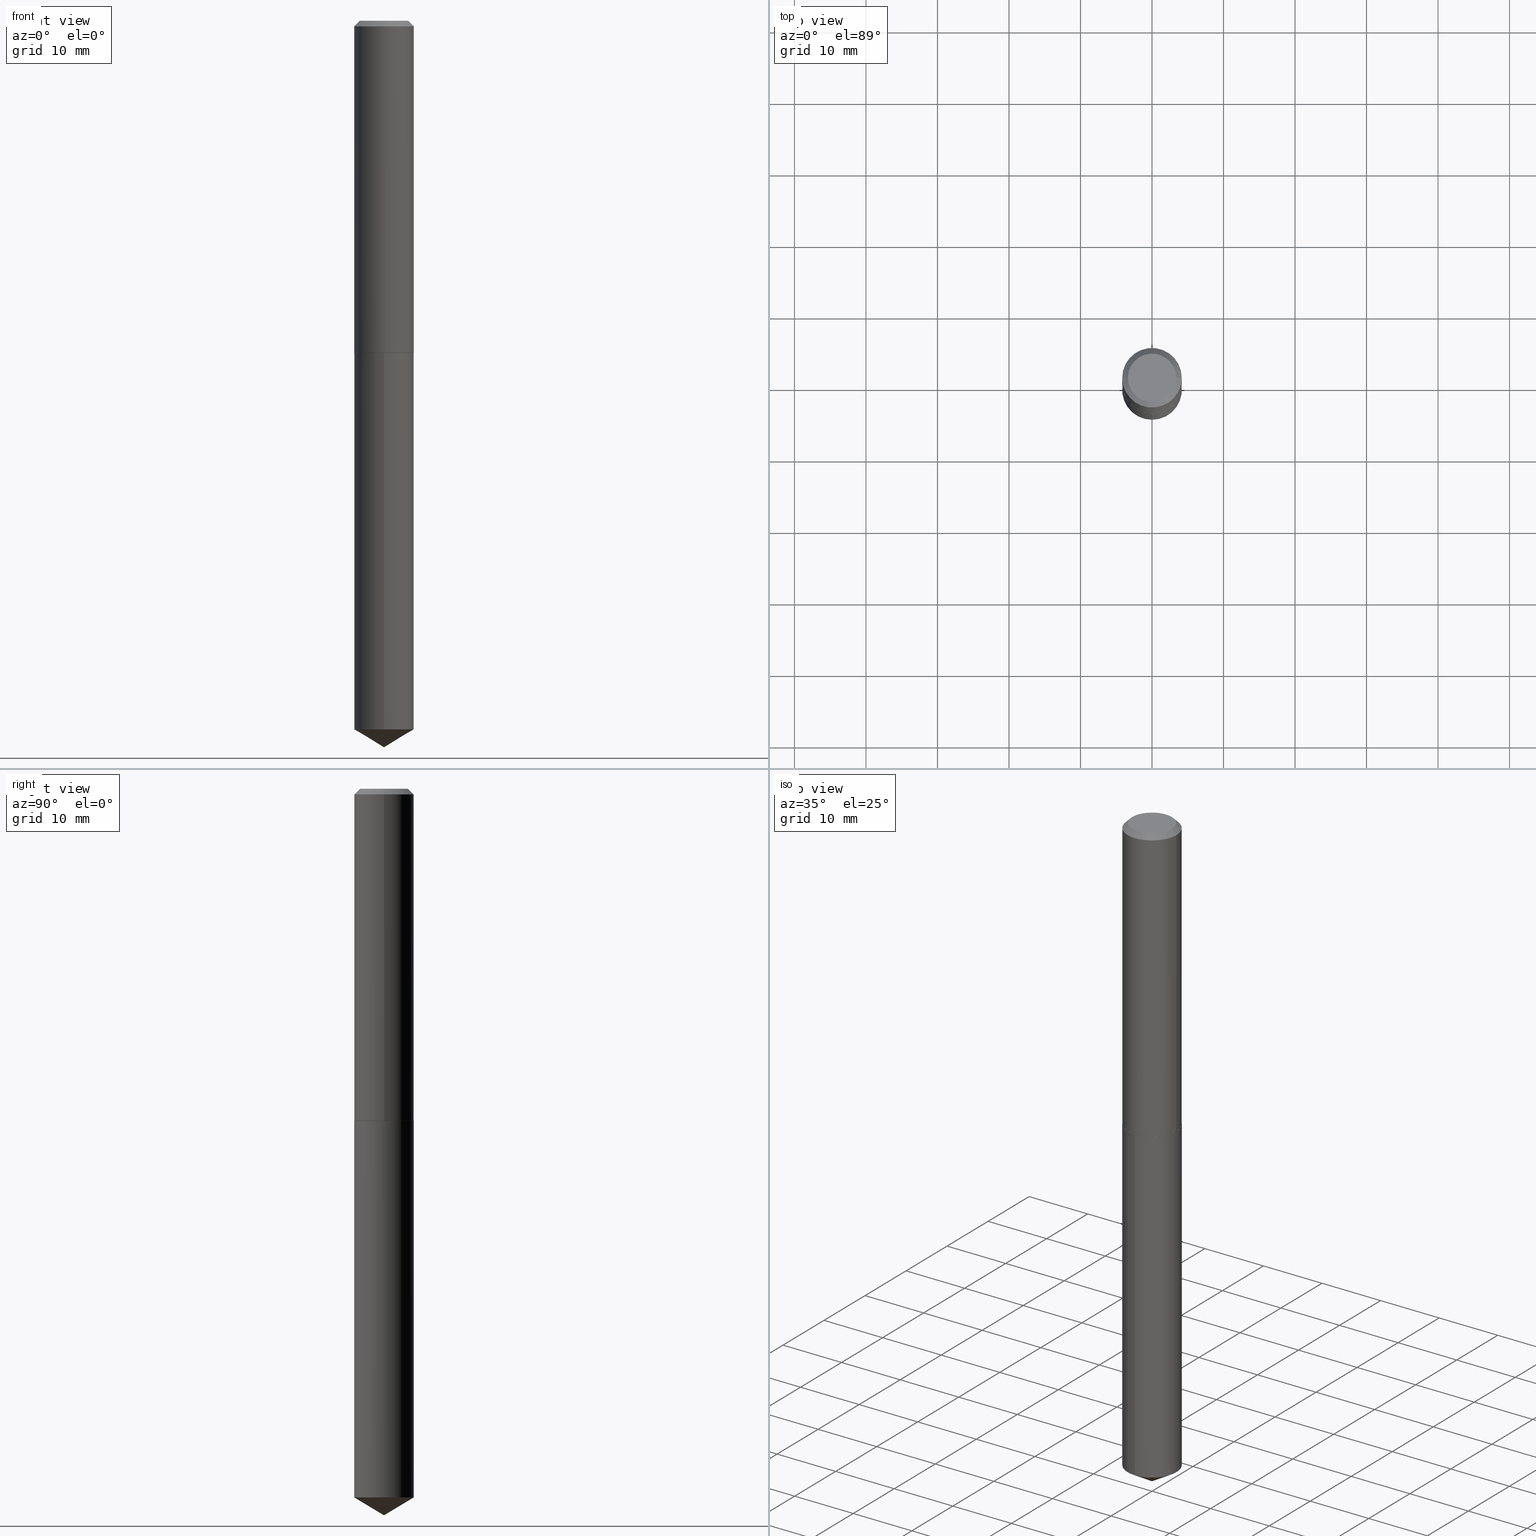
[diagram: canonical four-view strip — front | top / right | iso, engineering-drawing reading convention]
A machine part, canonical four-view strip (front | top / right | iso — engineering-drawing reading convention). The complete STEP part file that produces these views, byte-faithful:
ISO-10303-21;
HEADER;
FILE_DESCRIPTION (( 'STEP AP203' ),
    '1' );
FILE_NAME ('51121.STEP',
    '2024-04-22T18:31:22',
    ( '' ),
    ( '' ),
    'SwSTEP 2.0',
    'SolidWorks 2023',
    '' );
FILE_SCHEMA (( 'CONFIG_CONTROL_DESIGN' ));
ENDSEC;

DATA;
#1 = DIRECTION ( 'NONE',  ( -5.985567269335959423E-15, -0.8571673007021127777, 0.5150380749100531563 ) ) ;
#2 = LINE ( 'NONE', #271, #278 ) ;
#3 = LINE ( 'NONE', #88, #195 ) ;
#4 = CC_DESIGN_APPROVAL ( #79, ( #347 ) ) ;
#5 = DIRECTION ( 'NONE',  ( 1.000000000000000000, -6.982962677686264344E-15, 0.000000000000000000 ) ) ;
#6 = DIRECTION ( 'NONE',  ( -1.000000000000000000, 6.982962677686265922E-15, -4.876176775795935793E-29 ) ) ;
#7 = COORDINATED_UNIVERSAL_TIME_OFFSET ( 5, 0, .BEHIND. ) ;
#8 = ORIENTED_EDGE ( 'NONE', *, *, #290, .F. ) ;
#9 = EDGE_CURVE ( 'NONE', #256, #250, #207, .T. ) ;
#10 = MANIFOLD_SOLID_BREP ( 'Body-Move/Copy2[2]', #223 ) ;
#11 = DIRECTION ( 'NONE',  ( 1.000000000000000000, 0.000000000000000000, 0.000000000000000000 ) ) ;
#12 = AXIS2_PLACEMENT_3D ( 'NONE', #153, #61, #92 ) ;
#13 = ORIENTED_EDGE ( 'NONE', *, *, #111, .F. ) ;
#14 = CARTESIAN_POINT ( 'NONE',  ( 9.540838568338950055E-29, -1.362174284697678349E-14, -3.901428815448529708 ) ) ;
#15 = CALENDAR_DATE ( 2024, 22, 4 ) ;
#16 = ORIENTED_EDGE ( 'NONE', *, *, #389, .F. ) ;
#17 =( CONVERSION_BASED_UNIT ( 'INCH', #160 ) LENGTH_UNIT ( ) NAMED_UNIT ( #24 ) );
#18 = ORIENTED_EDGE ( 'NONE', *, *, #304, .F. ) ;
#19 = DIRECTION ( 'NONE',  ( -2.445476571768493601E-29, 3.491470218085789051E-15, 1.000000000000000000 ) ) ;
#20 = CARTESIAN_POINT ( 'NONE',  ( 4.470561524587048986E-29, -6.382777035539155361E-15, -1.828100000000000058 ) ) ;
#21 = FACE_OUTER_BOUND ( 'NONE', #193, .T. ) ;
#22 = VECTOR ( 'NONE', #335, 39.37007874015748143 ) ;
#23 = LINE ( 'NONE', #382, #377 ) ;
#24 = DIMENSIONAL_EXPONENTS ( 1.000000000000000000, 0.000000000000000000, 0.000000000000000000, 0.000000000000000000, 0.000000000000000000, 0.000000000000000000, 0.000000000000000000 ) ;
#25 = ADVANCED_FACE ( 'NONE', ( #314 ), #62, .T. ) ;
#26 = FACE_OUTER_BOUND ( 'NONE', #277, .T. ) ;
#27 = DIRECTION ( 'NONE',  ( -1.000000000000000000, 6.982962677686266711E-15, 0.000000000000000000 ) ) ;
#28 = AXIS2_PLACEMENT_3D ( 'NONE', #172, #211, #75 ) ;
#29 = VECTOR ( 'NONE', #269, 39.37007874015748143 ) ;
#30 = DIRECTION ( 'NONE',  ( -0.7071067811863543939, 7.493145998869656807E-15, 0.7071067811867406405 ) ) ;
#31 = ORIENTED_EDGE ( 'NONE', *, *, #386, .T. ) ;
#32 = EDGE_CURVE ( 'NONE', #220, #375, #390, .T. ) ;
#33 = DIRECTION ( 'NONE',  ( -2.445468806185136597E-29, 3.491481338843145583E-15, 1.000000000000000000 ) ) ;
#34 = DIRECTION ( 'NONE',  ( -6.982962677686265922E-15, -1.000000000000000000, 3.468864327941557927E-15 ) ) ;
#35 = AXIS2_PLACEMENT_3D ( 'NONE', #113, #229, #78 ) ;
#36 = CARTESIAN_POINT ( 'NONE',  ( 7.642090019328608793E-31, -1.091087918388491130E-16, -0.03125000000000023592 ) ) ;
#37 = APPROVAL_ROLE ( '' ) ;
#38 = EDGE_CURVE ( 'NONE', #342, #283, #297, .T. ) ;
#39 = PERSON_AND_ORGANIZATION_ROLE ( 'creator' ) ;
#40 = DIRECTION ( 'NONE',  ( -2.445476571768493321E-29, 3.491470218085789051E-15, 1.000000000000000000 ) ) ;
#41 = COORDINATED_UNIVERSAL_TIME_OFFSET ( 5, 0, .BEHIND. ) ;
#42 = CIRCLE ( 'NONE', #28, 0.1327999999999999736 ) ;
#43 = AXIS2_PLACEMENT_3D ( 'NONE', #217, #241, #242 ) ;
#44 = ORIENTED_EDGE ( 'NONE', *, *, #371, .T. ) ;
#45 = DIRECTION ( 'NONE',  ( -6.982962677686265133E-15, -1.000000000000000000, 3.330506545156066257E-15 ) ) ;
#46 = VERTEX_POINT ( 'NONE', #383 ) ;
#47 = CIRCLE ( 'NONE', #215, 0.1635500000000003618 ) ;
#48 = DIRECTION ( 'NONE',  ( -2.445476571768493321E-29, 3.491470218085789051E-15, 1.000000000000000000 ) ) ;
#49 = CARTESIAN_POINT ( 'NONE',  ( 4.470561524587048986E-29, -6.382777035539155361E-15, -1.828100000000000058 ) ) ;
#50 = CARTESIAN_POINT ( 'NONE',  ( -2.335971725809272108E-47, 3.335148527799636409E-33, 9.552245033349346191E-19 ) ) ;
#51 = DIRECTION ( 'NONE',  ( -6.982962677686265133E-15, -1.000000000000000000, 3.330506545156066257E-15 ) ) ;
#52 = LOCAL_TIME ( 14, 31, 21.00000000000000000, #63 ) ;
#53 = APPLICATION_CONTEXT ( 'configuration controlled 3d designs of mechanical parts and assemblies' ) ;
#54 = DIRECTION ( 'NONE',  ( 1.000000000000000000, -6.982962677686268288E-15, 4.876176775795935793E-29 ) ) ;
#55 = DIRECTION ( 'NONE',  ( 2.445468806185136597E-29, -3.491481338843145583E-15, -1.000000000000000000 ) ) ;
#56 = DIRECTION ( 'NONE',  ( 0.7071067811865453523, -7.319954787623248157E-15, -0.7071067811865496822 ) ) ;
#57 = CARTESIAN_POINT ( 'NONE',  ( 7.642090019328608793E-31, -1.091087918388491130E-16, -0.03125000000000023592 ) ) ;
#58 = EDGE_LOOP ( 'NONE', ( #161, #228, #367, #317 ) ) ;
#59 = CARTESIAN_POINT ( 'NONE',  ( 1.165645358014539817E-15, 0.1640499999999864011, -3.901428815448530152 ) ) ;
#60 = EDGE_CURVE ( 'NONE', #118, #72, #141, .T. ) ;
#61 = DIRECTION ( 'NONE',  ( -2.445468806185136597E-29, 3.491481338843145583E-15, 1.000000000000000000 ) ) ;
#62 = CONICAL_SURFACE ( 'NONE', #201, 65.52281426576911372, 1.029744258676658974 ) ;
#63 = COORDINATED_UNIVERSAL_TIME_OFFSET ( 5, 0, .BEHIND. ) ;
#64 = PERSON_AND_ORGANIZATION ( #126, #248 ) ;
#65 = VERTEX_POINT ( 'NONE', #388 ) ;
#66 = PERSON_AND_ORGANIZATION ( #126, #248 ) ;
#67 = CARTESIAN_POINT ( 'NONE',  ( -8.649671309692491660E-28, 1.234935562027526541E-13, 35.37007874015748143 ) ) ;
#68 = COORDINATED_UNIVERSAL_TIME_OFFSET ( 5, 0, .BEHIND. ) ;
#69 = AXIS2_PLACEMENT_3D ( 'NONE', #243, #369, #180 ) ;
#70 = EDGE_LOOP ( 'NONE', ( #247, #73, #275, #130 ) ) ;
#71 = CARTESIAN_POINT ( 'NONE',  ( 0.000000000000000000, 0.000000000000000000, 0.000000000000000000 ) ) ;
#72 = VERTEX_POINT ( 'NONE', #387 ) ;
#73 = ORIENTED_EDGE ( 'NONE', *, *, #107, .T. ) ;
#74 = EDGE_CURVE ( 'NONE', #46, #72, #287, .T. ) ;
#75 = DIRECTION ( 'NONE',  ( 1.000000000000000000, -6.982962677686266711E-15, 4.876210623450875917E-29 ) ) ;
#76 = CIRCLE ( 'NONE', #69, 0.1635500000000003618 ) ;
#77 = DIRECTION ( 'NONE',  ( -6.982962677686265133E-15, -1.000000000000000000, 3.330506545156066257E-15 ) ) ;
#78 = DIRECTION ( 'NONE',  ( 1.000000000000000000, -6.982962677686266711E-15, 0.000000000000000000 ) ) ;
#79 = APPROVAL ( #280, 'UNSPECIFIED' ) ;
#80 = CARTESIAN_POINT ( 'NONE',  ( 0.000000000000000000, 0.000000000000000000, 0.000000000000000000 ) ) ;
#81 = AXIS2_PLACEMENT_3D ( 'NONE', #326, #289, #51 ) ;
#82 = FACE_OUTER_BOUND ( 'NONE', #370, .T. ) ;
#83 = CARTESIAN_POINT ( 'NONE',  ( 4.470561524587048986E-29, -6.382777035539155361E-15, -1.828100000000000058 ) ) ;
#84 = ORIENTED_EDGE ( 'NONE', *, *, #284, .F. ) ;
#85 = APPROVAL ( #198, 'UNSPECIFIED' ) ;
#86 = FACE_OUTER_BOUND ( 'NONE', #226, .T. ) ;
#87 = EDGE_LOOP ( 'NONE', ( #136, #268, #190, #99 ) ) ;
#88 = CARTESIAN_POINT ( 'NONE',  ( 0.1640500000000001124, -1.145555027274433043E-15, 7.999368000693238548E-30 ) ) ;
#89 = ORIENTED_EDGE ( 'NONE', *, *, #38, .T. ) ;
#90 = DIRECTION ( 'NONE',  ( -2.445468806185136877E-29, 3.491481338843145188E-15, 1.000000000000000000 ) ) ;
#91 = EDGE_CURVE ( 'NONE', #65, #352, #174, .T. ) ;
#92 = DIRECTION ( 'NONE',  ( 1.000000000000000000, -6.982962677686264344E-15, 0.000000000000000000 ) ) ;
#93 = AXIS2_PLACEMENT_3D ( 'NONE', #202, #321, #257 ) ;
#94 = VECTOR ( 'NONE', #56, 39.37007874015748143 ) ;
#95 = CALENDAR_DATE ( 2024, 22, 4 ) ;
#96 = ORIENTED_EDGE ( 'NONE', *, *, #107, .F. ) ;
#97 = ADVANCED_FACE ( 'NONE', ( #82 ), #149, .T. ) ;
#98 =( NAMED_UNIT ( * ) PLANE_ANGLE_UNIT ( ) SI_UNIT ( $, .RADIAN. ) );
#99 = ORIENTED_EDGE ( 'NONE', *, *, #371, .F. ) ;
#100 = SECURITY_CLASSIFICATION_LEVEL ( 'unclassified' ) ;
#101 = VERTEX_POINT ( 'NONE', #292 ) ;
#102 = AXIS2_PLACEMENT_3D ( 'NONE', #14, #252, #45 ) ;
#103 = DATE_AND_TIME ( #376, #52 ) ;
#104 = AXIS2_PLACEMENT_3D ( 'NONE', #303, #245, #6 ) ;
#105 = ORIENTED_EDGE ( 'NONE', *, *, #38, .F. ) ;
#106 = ORIENTED_EDGE ( 'NONE', *, *, #32, .F. ) ;
#107 = EDGE_CURVE ( 'NONE', #375, #250, #358, .T. ) ;
#108 = DIRECTION ( 'NONE',  ( -2.445468806185136597E-29, 3.491481338843145583E-15, 1.000000000000000000 ) ) ;
#109 = DIRECTION ( 'NONE',  ( 1.000000000000000000, -6.982962677686268288E-15, 4.876176775795935793E-29 ) ) ;
#110 = LOCAL_TIME ( 14, 31, 21.00000000000000000, #41 ) ;
#111 = EDGE_CURVE ( 'NONE', #283, #342, #42, .T. ) ;
#112 = DIRECTION ( 'NONE',  ( -2.445468806185136877E-29, 3.491481338843145188E-15, 1.000000000000000000 ) ) ;
#113 = CARTESIAN_POINT ( 'NONE',  ( 7.642090019328608793E-31, -1.091087918388491130E-16, -0.03125000000000023592 ) ) ;
#114 = PLANE ( 'NONE',  #175 ) ;
#115 = VECTOR ( 'NONE', #235, 39.37007874015748143 ) ;
#116 = CC_DESIGN_APPROVAL ( #85, ( #143 ) ) ;
#117 = PLANE ( 'NONE',  #188 ) ;
#118 = VERTEX_POINT ( 'NONE', #176 ) ;
#119 = CC_DESIGN_DATE_AND_TIME_ASSIGNMENT ( #103, #349, ( #224 ) ) ;
#120 = DIRECTION ( 'NONE',  ( 1.000000000000000000, -6.982962677686266711E-15, 0.000000000000000000 ) ) ;
#121 = FACE_OUTER_BOUND ( 'NONE', #58, .T. ) ;
#122 = LOCAL_TIME ( 14, 31, 21.00000000000000000, #7 ) ;
#123 = DIRECTION ( 'NONE',  ( 6.982962677686265922E-15, 1.000000000000000000, -3.491470218085789051E-15 ) ) ;
#124 = CC_DESIGN_PERSON_AND_ORGANIZATION_ASSIGNMENT ( #372, #164, ( #347 ) ) ;
#125 = CARTESIAN_POINT ( 'NONE',  ( 1.165645358014539817E-15, 0.1640499999999935898, -1.828100000000000724 ) ) ;
#126 = PERSON ( 'UNSPECIFIED', 'UNSPECIFIED', 'UNSPECIFIED', ('UNSPECIFIED'), ('UNSPECIFIED'), ('UNSPECIFIED') ) ;
#127 = EDGE_LOOP ( 'NONE', ( #281, #199 ) ) ;
#128 = AXIS2_PLACEMENT_3D ( 'NONE', #270, #368, #34 ) ;
#129 = CALENDAR_DATE ( 2024, 22, 4 ) ;
#130 = ORIENTED_EDGE ( 'NONE', *, *, #334, .F. ) ;
#131 = DATE_AND_TIME ( #129, #110 ) ;
#132 = ORIENTED_EDGE ( 'NONE', *, *, #206, .F. ) ;
#133 = ADVANCED_FACE ( 'NONE', ( #356 ), #171, .T. ) ;
#134 = PERSON_AND_ORGANIZATION ( #126, #248 ) ;
#135 = ADVANCED_FACE ( 'NONE', ( #209 ), #265, .T. ) ;
#136 = ORIENTED_EDGE ( 'NONE', *, *, #351, .T. ) ;
#137 = AXIS2_PLACEMENT_3D ( 'NONE', #80, #178, #109 ) ;
#138 =( LENGTH_UNIT ( ) NAMED_UNIT ( * ) SI_UNIT ( $, .METRE. ) );
#139 = CONICAL_SURFACE ( 'NONE', #182, 0.1640500000000002512, 0.7853981633971751641 ) ;
#140 = ORIENTED_EDGE ( 'NONE', *, *, #334, .T. ) ;
#141 = LINE ( 'NONE', #263, #259 ) ;
#142 = DIRECTION ( 'NONE',  ( -2.445468806185136597E-29, 3.491481338843145583E-15, 1.000000000000000000 ) ) ;
#143 = PRODUCT_DEFINITION ( 'UNKNOWN', '', #347, #320 ) ;
#144 = VECTOR ( 'NONE', #19, 39.37007874015748143 ) ;
#145 = DIRECTION ( 'NONE',  ( 2.445468806185136597E-29, -3.491481338843145583E-15, -1.000000000000000000 ) ) ;
#146 = CIRCLE ( 'NONE', #81, 0.1640500000000000014 ) ;
#147 = APPROVAL_DATE_TIME ( #325, #274 ) ;
#148 = MANIFOLD_SOLID_BREP ( 'Body-Move/Copy2[1]', #236 ) ;
#149 = CYLINDRICAL_SURFACE ( 'NONE', #354, 0.1640500000000000014 ) ;
#150 = CARTESIAN_POINT ( 'NONE',  ( 7.642090019328608793E-31, -1.091087918388491130E-16, -0.03125000000000023592 ) ) ;
#151 = DIRECTION ( 'NONE',  ( -2.438088387897960049E-29, 3.491481338843145188E-15, 1.000000000000000000 ) ) ;
#152 = CC_DESIGN_PERSON_AND_ORGANIZATION_ASSIGNMENT ( #134, #339, ( #224 ) ) ;
#153 = CARTESIAN_POINT ( 'NONE',  ( 4.469338790183955624E-29, -6.381031294869733069E-15, -1.827599999999999891 ) ) ;
#154 = EDGE_LOOP ( 'NONE', ( #84, #162, #132 ) ) ;
#155 = DIRECTION ( 'NONE',  ( 1.000000000000000000, -6.982962677686264344E-15, 0.000000000000000000 ) ) ;
#156 = DIRECTION ( 'NONE',  ( 2.445476571768493040E-29, -3.491470218085789051E-15, -1.000000000000000000 ) ) ;
#157 = VERTEX_POINT ( 'NONE', #231 ) ;
#158 = CIRCLE ( 'NONE', #43, 0.1640500000000000014 ) ;
#159 = LINE ( 'NONE', #302, #22 ) ;
#160 = LENGTH_MEASURE_WITH_UNIT ( LENGTH_MEASURE( 0.02539999999999999897 ), #138 );
#161 = ORIENTED_EDGE ( 'NONE', *, *, #316, .T. ) ;
#162 = ORIENTED_EDGE ( 'NONE', *, *, #304, .T. ) ;
#163 = AXIS2_PLACEMENT_3D ( 'NONE', #50, #108, #353 ) ;
#164 = PERSON_AND_ORGANIZATION_ROLE ( 'creator' ) ;
#165 = ORIENTED_EDGE ( 'NONE', *, *, #173, .T. ) ;
#166 = DATE_AND_TIME ( #15, #122 ) ;
#167 = ORIENTED_EDGE ( 'NONE', *, *, #60, .F. ) ;
#168 = PERSON_AND_ORGANIZATION_ROLE ( 'design_owner' ) ;
#169 = ORIENTED_EDGE ( 'NONE', *, *, #74, .T. ) ;
#170 = APPROVAL_PERSON_ORGANIZATION ( #189, #274, #37 ) ;
#171 = CYLINDRICAL_SURFACE ( 'NONE', #137, 0.1640500000000001124 ) ;
#172 = CARTESIAN_POINT ( 'NONE',  ( -2.335971725809272108E-47, 3.335148527799636409E-33, 9.552245033349346191E-19 ) ) ;
#173 = EDGE_CURVE ( 'NONE', #283, #72, #23, .T. ) ;
#174 = LINE ( 'NONE', #323, #115 ) ;
#175 = AXIS2_PLACEMENT_3D ( 'NONE', #273, #156, #123 ) ;
#176 = CARTESIAN_POINT ( 'NONE',  ( -0.1640500000000002512, -5.215385936855286140E-15, -1.827599999999999891 ) ) ;
#177 = ADVANCED_FACE ( 'NONE', ( #21 ), #311, .T. ) ;
#178 = DIRECTION ( 'NONE',  ( -2.445468806185136597E-29, 3.491481338843145583E-15, 1.000000000000000000 ) ) ;
#179 = ADVANCED_FACE ( 'NONE', ( #260 ), #357, .T. ) ;
#180 = DIRECTION ( 'NONE',  ( 1.000000000000000000, -6.982962677686269077E-15, 0.000000000000000000 ) ) ;
#181 = DIRECTION ( 'NONE',  ( -2.445468806185136597E-29, 3.491481338843145583E-15, 1.000000000000000000 ) ) ;
#182 = AXIS2_PLACEMENT_3D ( 'NONE', #296, #33, #5 ) ;
#183 = CARTESIAN_POINT ( 'NONE',  ( -0.1327999999999999736, 9.818918395161595893E-16, 9.552245033282587681E-19 ) ) ;
#184 = ORIENTED_EDGE ( 'NONE', *, *, #9, .T. ) ;
#185 = FACE_OUTER_BOUND ( 'NONE', #378, .T. ) ;
#186 = EDGE_LOOP ( 'NONE', ( #16, #13, #165, #222 ) ) ;
#187 = LINE ( 'NONE', #212, #94 ) ;
#188 = AXIS2_PLACEMENT_3D ( 'NONE', #83, #151, #267 ) ;
#189 = PERSON_AND_ORGANIZATION ( #126, #248 ) ;
#190 = ORIENTED_EDGE ( 'NONE', *, *, #74, .F. ) ;
#191 = ORIENTED_EDGE ( 'NONE', *, *, #206, .T. ) ;
#192 = APPROVAL_ROLE ( '' ) ;
#193 = EDGE_LOOP ( 'NONE', ( #105, #308, #169, #380 ) ) ;
#194 = AXIS2_PLACEMENT_3D ( 'NONE', #20, #385, #77 ) ;
#195 = VECTOR ( 'NONE', #90, 39.37007874015748143 ) ;
#196 = VECTOR ( 'NONE', #1, 39.37007874015748854 ) ;
#197 = CARTESIAN_POINT ( 'NONE',  ( 4.470561524587048986E-29, -6.382777035539155361E-15, -1.828100000000000058 ) ) ;
#198 = APPROVAL_STATUS ( 'not_yet_approved' ) ;
#199 = ORIENTED_EDGE ( 'NONE', *, *, #205, .F. ) ;
#200 = ORIENTED_EDGE ( 'NONE', *, *, #262, .F. ) ;
#201 = AXIS2_PLACEMENT_3D ( 'NONE', #67, #312, #346 ) ;
#202 = CARTESIAN_POINT ( 'NONE',  ( 4.469338790183955624E-29, -6.381031294869733069E-15, -1.827599999999999891 ) ) ;
#203 = FACE_OUTER_BOUND ( 'NONE', #87, .T. ) ;
#204 = CARTESIAN_POINT ( 'NONE',  ( 4.470561524587048986E-29, -6.382777035539155361E-15, -1.828100000000000058 ) ) ;
#205 = EDGE_CURVE ( 'NONE', #101, #65, #47, .T. ) ;
#206 = EDGE_CURVE ( 'NONE', #375, #220, #146, .T. ) ;
#207 = CIRCLE ( 'NONE', #330, 0.1640500000000000014 ) ;
#208 =( GEOMETRIC_REPRESENTATION_CONTEXT ( 3 ) GLOBAL_UNCERTAINTY_ASSIGNED_CONTEXT ( ( #232 ) ) GLOBAL_UNIT_ASSIGNED_CONTEXT ( ( #17, #98, #345 ) ) REPRESENTATION_CONTEXT ( 'NONE', 'WORKASPACE' ) );
#209 = FACE_OUTER_BOUND ( 'NONE', #333, .T. ) ;
#210 = ADVANCED_FACE ( 'NONE', ( #203 ), #322, .T. ) ;
#211 = DIRECTION ( 'NONE',  ( -2.445468806185136597E-29, 3.491481338843145583E-15, 1.000000000000000000 ) ) ;
#212 = CARTESIAN_POINT ( 'NONE',  ( 0.1640500000000000291, -1.234573488373268850E-15, -0.03125000000000023592 ) ) ;
#213 = FACE_OUTER_BOUND ( 'NONE', #127, .T. ) ;
#214 = CC_DESIGN_PERSON_AND_ORGANIZATION_ASSIGNMENT ( #379, #168, ( #338 ) ) ;
#215 = AXIS2_PLACEMENT_3D ( 'NONE', #204, #142, #258 ) ;
#216 = CARTESIAN_POINT ( 'NONE',  ( 0.1327999999999999736, -1.072823811238664119E-15, 9.552245033419278633E-19 ) ) ;
#217 = CARTESIAN_POINT ( 'NONE',  ( 4.470561524587048986E-29, -6.382777035539155361E-15, -1.828100000000000058 ) ) ;
#218 = DATE_TIME_ROLE ( 'creation_date' ) ;
#219 = CC_DESIGN_PERSON_AND_ORGANIZATION_ASSIGNMENT ( #251, #374, ( #347 ) ) ;
#220 = VERTEX_POINT ( 'NONE', #264 ) ;
#221 = EDGE_LOOP ( 'NONE', ( #167, #31, #44, #8 ) ) ;
#222 = ORIENTED_EDGE ( 'NONE', *, *, #290, .T. ) ;
#223 = CLOSED_SHELL ( 'NONE', ( #177, #210, #246, #355, #135, #133, #279, #300 ) ) ;
#224 = SECURITY_CLASSIFICATION ( '', '', #100 ) ;
#225 = APPLICATION_PROTOCOL_DEFINITION ( 'international standard', 'config_control_design', 1994, #53 ) ;
#226 = EDGE_LOOP ( 'NONE', ( #18, #301, #106 ) ) ;
#227 = COORDINATED_UNIVERSAL_TIME_OFFSET ( 5, 0, .BEHIND. ) ;
#228 = ORIENTED_EDGE ( 'NONE', *, *, #262, .T. ) ;
#229 = DIRECTION ( 'NONE',  ( -2.445468806185136597E-29, 3.491481338843145583E-15, 1.000000000000000000 ) ) ;
#230 = CC_DESIGN_PERSON_AND_ORGANIZATION_ASSIGNMENT ( #66, #39, ( #143 ) ) ;
#231 = CARTESIAN_POINT ( 'NONE',  ( 9.781906287073974404E-29, -1.396588087234315620E-14, -4.000000000000000000 ) ) ;
#232 = UNCERTAINTY_MEASURE_WITH_UNIT (LENGTH_MEASURE( 1.000000000000000082E-05 ), #17, 'distance_accuracy_value', 'NONE');
#233 = DIRECTION ( 'NONE',  ( -6.982962677686265133E-15, -1.000000000000000000, 3.330506545156066257E-15 ) ) ;
#234 = SHAPE_DEFINITION_REPRESENTATION ( #240, #286 ) ;
#235 = DIRECTION ( 'NONE',  ( 0.7071067811863543939, -2.468850131080234027E-15, 0.7071067811867406405 ) ) ;
#236 = CLOSED_SHELL ( 'NONE', ( #179, #348, #25, #97, #244 ) ) ;
#237 = CIRCLE ( 'NONE', #364, 0.1640500000000002512 ) ;
#238 = DIRECTION ( 'NONE',  ( -2.445468806185136597E-29, 3.491481338843145583E-15, 1.000000000000000000 ) ) ;
#239 = CARTESIAN_POINT ( 'NONE',  ( -1.145555027274387092E-15, -0.1640500000000063852, -1.828099999999999614 ) ) ;
#240 = PRODUCT_DEFINITION_SHAPE ( 'NONE', 'NONE',  #143 ) ;
#241 = DIRECTION ( 'NONE',  ( -2.445476571768493321E-29, 3.491470218085789051E-15, 1.000000000000000000 ) ) ;
#242 = DIRECTION ( 'NONE',  ( -6.982962677686265133E-15, -1.000000000000000000, 3.330506545156066257E-15 ) ) ;
#243 = CARTESIAN_POINT ( 'NONE',  ( 4.470561524587048986E-29, -6.382777035539155361E-15, -1.828100000000000058 ) ) ;
#244 = ADVANCED_FACE ( 'NONE', ( #26 ), #114, .F. ) ;
#245 = DIRECTION ( 'NONE',  ( 2.438088387897960049E-29, -3.491481338843145188E-15, -1.000000000000000000 ) ) ;
#246 = ADVANCED_FACE ( 'NONE', ( #121 ), #139, .T. ) ;
#247 = ORIENTED_EDGE ( 'NONE', *, *, #32, .T. ) ;
#248 = ORGANIZATION ( 'UNSPECIFIED', 'UNSPECIFIED', '' ) ;
#249 = APPROVAL_DATE_TIME ( #131, #79 ) ;
#250 = VERTEX_POINT ( 'NONE', #125 ) ;
#251 = PERSON_AND_ORGANIZATION ( #126, #248 ) ;
#252 = DIRECTION ( 'NONE',  ( -2.445476571768493321E-29, 3.491470218085789051E-15, 1.000000000000000000 ) ) ;
#253 = DIRECTION ( 'NONE',  ( 0.000000000000000000, 0.000000000000000000, 1.000000000000000000 ) ) ;
#254 = ORIENTED_EDGE ( 'NONE', *, *, #336, .T. ) ;
#255 = AXIS2_PLACEMENT_3D ( 'NONE', #36, #181, #120 ) ;
#256 = VERTEX_POINT ( 'NONE', #362 ) ;
#257 = DIRECTION ( 'NONE',  ( 1.000000000000000000, -6.982962677686264344E-15, 0.000000000000000000 ) ) ;
#258 = DIRECTION ( 'NONE',  ( 1.000000000000000000, -6.982962677686269077E-15, 0.000000000000000000 ) ) ;
#259 = VECTOR ( 'NONE', #112, 39.37007874015748143 ) ;
#260 = FACE_OUTER_BOUND ( 'NONE', #70, .T. ) ;
#261 = APPLICATION_CONTEXT ( 'configuration controlled 3d designs of mechanical parts and assemblies' ) ;
#262 = EDGE_CURVE ( 'NONE', #101, #118, #2, .T. ) ;
#263 = CARTESIAN_POINT ( 'NONE',  ( -0.1640500000000001124, 1.165645358014445154E-15, -8.069513015563179171E-30 ) ) ;
#264 = CARTESIAN_POINT ( 'NONE',  ( -1.145555027274336999E-15, -0.1640500000000136849, -3.901428815448529264 ) ) ;
#265 = CONICAL_SURFACE ( 'NONE', #93, 0.1640500000000002512, 0.7853981633971751641 ) ;
#266 = AXIS2_PLACEMENT_3D ( 'NONE', #71, #253, #11 ) ;
#267 = DIRECTION ( 'NONE',  ( 1.000000000000000000, -6.982962677686265922E-15, 4.876176775795935793E-29 ) ) ;
#268 = ORIENTED_EDGE ( 'NONE', *, *, #60, .T. ) ;
#269 = DIRECTION ( 'NONE',  ( -2.445476571768493601E-29, 3.491470218085789051E-15, 1.000000000000000000 ) ) ;
#270 = CARTESIAN_POINT ( 'NONE',  ( -8.649671309692491660E-28, 1.234935562027526541E-13, 35.37007874015748143 ) ) ;
#271 = CARTESIAN_POINT ( 'NONE',  ( -0.1640500000000002512, -5.215385936855286140E-15, -1.827599999999999891 ) ) ;
#272 = CC_DESIGN_SECURITY_CLASSIFICATION ( #224, ( #347 ) ) ;
#273 = CARTESIAN_POINT ( 'NONE',  ( 4.470561524587048986E-29, -6.382777035539155361E-15, -1.828100000000000058 ) ) ;
#274 = APPROVAL ( #307, 'UNSPECIFIED' ) ;
#275 = ORIENTED_EDGE ( 'NONE', *, *, #9, .F. ) ;
#276 = APPROVAL_ROLE ( '' ) ;
#277 = EDGE_LOOP ( 'NONE', ( #184, #254 ) ) ;
#278 = VECTOR ( 'NONE', #30, 39.37007874015748143 ) ;
#279 = ADVANCED_FACE ( 'NONE', ( #332 ), #324, .T. ) ;
#280 = APPROVAL_STATUS ( 'not_yet_approved' ) ;
#281 = ORIENTED_EDGE ( 'NONE', *, *, #316, .F. ) ;
#282 = MECHANICAL_CONTEXT ( 'NONE', #53, 'mechanical' ) ;
#283 = VERTEX_POINT ( 'NONE', #183 ) ;
#284 = EDGE_CURVE ( 'NONE', #157, #375, #159, .T. ) ;
#285 = ORIENTED_EDGE ( 'NONE', *, *, #336, .F. ) ;
#286 = ADVANCED_BREP_SHAPE_REPRESENTATION ( '51121', ( #148, #10, #266 ), #208 ) ;
#287 = CIRCLE ( 'NONE', #35, 0.1640500000000000291 ) ;
#288 = AXIS2_PLACEMENT_3D ( 'NONE', #57, #55, #27 ) ;
#289 = DIRECTION ( 'NONE',  ( -2.445476571768493321E-29, 3.491470218085789051E-15, 1.000000000000000000 ) ) ;
#290 = EDGE_CURVE ( 'NONE', #72, #46, #359, .T. ) ;
#291 = DIRECTION ( 'NONE',  ( -0.7071067811865453523, 2.468850131082234184E-15, -0.7071067811865496822 ) ) ;
#292 = CARTESIAN_POINT ( 'NONE',  ( -0.1635500000000003618, -5.218035164029397341E-15, -1.828100000000000058 ) ) ;
#293 = APPROVAL_PERSON_ORGANIZATION ( #310, #85, #192 ) ;
#294 = CARTESIAN_POINT ( 'NONE',  ( 0.000000000000000000, 0.000000000000000000, 0.000000000000000000 ) ) ;
#295 = DIRECTION ( 'NONE',  ( -1.000000000000000000, 6.982962677686266711E-15, 0.000000000000000000 ) ) ;
#296 = CARTESIAN_POINT ( 'NONE',  ( 4.469338790183955624E-29, -6.381031294869733069E-15, -1.827599999999999891 ) ) ;
#297 = CIRCLE ( 'NONE', #163, 0.1327999999999999736 ) ;
#298 = CONICAL_SURFACE ( 'NONE', #128, 65.52281426576911372, 1.029744258676658974 ) ;
#299 = CARTESIAN_POINT ( 'NONE',  ( 4.469338790183955624E-29, -6.381031294869733069E-15, -1.827599999999999891 ) ) ;
#300 = ADVANCED_FACE ( 'NONE', ( #185 ), #327, .F. ) ;
#301 = ORIENTED_EDGE ( 'NONE', *, *, #284, .T. ) ;
#302 = CARTESIAN_POINT ( 'NONE',  ( 9.781906536042911342E-29, -1.396588087234315620E-14, -4.000000000000000000 ) ) ;
#303 = CARTESIAN_POINT ( 'NONE',  ( -1.167985862904636054E-47, 1.667574263899818204E-33, 4.776122516674673095E-19 ) ) ;
#304 = EDGE_CURVE ( 'NONE', #157, #220, #366, .T. ) ;
#305 = LINE ( 'NONE', #239, #29 ) ;
#306 = CIRCLE ( 'NONE', #12, 0.1640500000000002512 ) ;
#307 = APPROVAL_STATUS ( 'not_yet_approved' ) ;
#308 = ORIENTED_EDGE ( 'NONE', *, *, #389, .T. ) ;
#309 = ORIENTED_EDGE ( 'NONE', *, *, #386, .F. ) ;
#310 = PERSON_AND_ORGANIZATION ( #126, #248 ) ;
#311 = CONICAL_SURFACE ( 'NONE', #318, 0.1640500000000000291, 0.7853981633974452814 ) ;
#312 = DIRECTION ( 'NONE',  ( -2.445476571768493321E-29, 3.491470218085789051E-15, 1.000000000000000000 ) ) ;
#313 = APPROVAL_DATE_TIME ( #341, #85 ) ;
#314 = FACE_OUTER_BOUND ( 'NONE', #154, .T. ) ;
#315 = ORIENTED_EDGE ( 'NONE', *, *, #205, .T. ) ;
#316 = EDGE_CURVE ( 'NONE', #65, #101, #76, .T. ) ;
#317 = ORIENTED_EDGE ( 'NONE', *, *, #91, .F. ) ;
#318 = AXIS2_PLACEMENT_3D ( 'NONE', #150, #145, #295 ) ;
#319 = LOCAL_TIME ( 14, 31, 21.00000000000000000, #227 ) ;
#320 = DESIGN_CONTEXT ( 'detailed design', #261, 'design' ) ;
#321 = DIRECTION ( 'NONE',  ( -2.445468806185136597E-29, 3.491481338843145583E-15, 1.000000000000000000 ) ) ;
#322 = CYLINDRICAL_SURFACE ( 'NONE', #365, 0.1640500000000001124 ) ;
#323 = CARTESIAN_POINT ( 'NONE',  ( 0.1640500000000002512, -7.526586322144166309E-15, -1.827599999999999891 ) ) ;
#324 = CONICAL_SURFACE ( 'NONE', #288, 0.1640500000000000291, 0.7853981633974452814 ) ;
#325 = DATE_AND_TIME ( #381, #319 ) ;
#326 = CARTESIAN_POINT ( 'NONE',  ( 9.540838568338950055E-29, -1.362174284697678349E-14, -3.901428815448529708 ) ) ;
#327 = PLANE ( 'NONE',  #104 ) ;
#328 = PRODUCT_RELATED_PRODUCT_CATEGORY ( 'detail', '', ( #338 ) ) ;
#329 = CARTESIAN_POINT ( 'NONE',  ( 9.781877894548104160E-29, -1.396592153205620388E-14, -4.000000000000000000 ) ) ;
#330 = AXIS2_PLACEMENT_3D ( 'NONE', #197, #40, #344 ) ;
#331 = CC_DESIGN_APPROVAL ( #274, ( #224 ) ) ;
#332 = FACE_OUTER_BOUND ( 'NONE', #186, .T. ) ;
#333 = EDGE_LOOP ( 'NONE', ( #200, #315, #350, #309 ) ) ;
#334 = EDGE_CURVE ( 'NONE', #220, #256, #305, .T. ) ;
#335 = DIRECTION ( 'NONE',  ( 6.090539988449795790E-15, 0.8571673007021165525, 0.5150380749100472721 ) ) ;
#336 = EDGE_CURVE ( 'NONE', #250, #256, #158, .T. ) ;
#337 = CARTESIAN_POINT ( 'NONE',  ( 0.1640500000000002512, -7.526586322144166309E-15, -1.827599999999999891 ) ) ;
#338 = PRODUCT ( '51121', '51121', '', ( #282 ) ) ;
#339 = PERSON_AND_ORGANIZATION_ROLE ( 'classification_officer' ) ;
#340 = APPROVAL_PERSON_ORGANIZATION ( #64, #79, #276 ) ;
#341 = DATE_AND_TIME ( #95, #384 ) ;
#342 = VERTEX_POINT ( 'NONE', #216 ) ;
#343 = APPLICATION_PROTOCOL_DEFINITION ( 'international standard', 'config_control_design', 1994, #261 ) ;
#344 = DIRECTION ( 'NONE',  ( -6.982962677686265133E-15, -1.000000000000000000, 3.330506545156066257E-15 ) ) ;
#345 =( NAMED_UNIT ( * ) SI_UNIT ( $, .STERADIAN. ) SOLID_ANGLE_UNIT ( ) );
#346 = DIRECTION ( 'NONE',  ( -6.982962677686265922E-15, -1.000000000000000000, 3.468864327941557927E-15 ) ) ;
#347 = PRODUCT_DEFINITION_FORMATION_WITH_SPECIFIED_SOURCE ( 'ANY', '', #338, .NOT_KNOWN. ) ;
#348 = ADVANCED_FACE ( 'NONE', ( #86 ), #298, .T. ) ;
#349 = DATE_TIME_ROLE ( 'classification_date' ) ;
#350 = ORIENTED_EDGE ( 'NONE', *, *, #91, .T. ) ;
#351 = EDGE_CURVE ( 'NONE', #352, #118, #237, .T. ) ;
#352 = VERTEX_POINT ( 'NONE', #337 ) ;
#353 = DIRECTION ( 'NONE',  ( 1.000000000000000000, -6.982962677686266711E-15, 4.876210623450875917E-29 ) ) ;
#354 = AXIS2_PLACEMENT_3D ( 'NONE', #49, #48, #233 ) ;
#355 = ADVANCED_FACE ( 'NONE', ( #213 ), #117, .F. ) ;
#356 = FACE_OUTER_BOUND ( 'NONE', #221, .T. ) ;
#357 = CYLINDRICAL_SURFACE ( 'NONE', #194, 0.1640500000000000014 ) ;
#358 = LINE ( 'NONE', #360, #144 ) ;
#359 = CIRCLE ( 'NONE', #255, 0.1640500000000000291 ) ;
#360 = CARTESIAN_POINT ( 'NONE',  ( 1.165645358014488738E-15, 0.1640499999999935898, -1.828100000000000724 ) ) ;
#361 = CC_DESIGN_DATE_AND_TIME_ASSIGNMENT ( #166, #218, ( #143 ) ) ;
#362 = CARTESIAN_POINT ( 'NONE',  ( -1.145555027274387092E-15, -0.1640500000000063852, -1.828099999999999614 ) ) ;
#363 = DIRECTION ( 'NONE',  ( -2.445468806185136597E-29, 3.491481338843145583E-15, 1.000000000000000000 ) ) ;
#364 = AXIS2_PLACEMENT_3D ( 'NONE', #299, #363, #155 ) ;
#365 = AXIS2_PLACEMENT_3D ( 'NONE', #294, #238, #54 ) ;
#366 = LINE ( 'NONE', #329, #196 ) ;
#367 = ORIENTED_EDGE ( 'NONE', *, *, #351, .F. ) ;
#368 = DIRECTION ( 'NONE',  ( -2.445476571768493321E-29, 3.491470218085789051E-15, 1.000000000000000000 ) ) ;
#369 = DIRECTION ( 'NONE',  ( -2.445468806185136597E-29, 3.491481338843145583E-15, 1.000000000000000000 ) ) ;
#370 = EDGE_LOOP ( 'NONE', ( #96, #191, #140, #285 ) ) ;
#371 = EDGE_CURVE ( 'NONE', #352, #46, #3, .T. ) ;
#372 = PERSON_AND_ORGANIZATION ( #126, #248 ) ;
#373 = ORIENTED_EDGE ( 'NONE', *, *, #111, .T. ) ;
#374 = PERSON_AND_ORGANIZATION_ROLE ( 'design_supplier' ) ;
#375 = VERTEX_POINT ( 'NONE', #59 ) ;
#376 = CALENDAR_DATE ( 2024, 22, 4 ) ;
#377 = VECTOR ( 'NONE', #291, 39.37007874015748143 ) ;
#378 = EDGE_LOOP ( 'NONE', ( #373, #89 ) ) ;
#379 = PERSON_AND_ORGANIZATION ( #126, #248 ) ;
#380 = ORIENTED_EDGE ( 'NONE', *, *, #173, .F. ) ;
#381 = CALENDAR_DATE ( 2024, 22, 4 ) ;
#382 = CARTESIAN_POINT ( 'NONE',  ( -0.1640500000000000291, 1.036446235435583154E-15, -0.03125000000000023592 ) ) ;
#383 = CARTESIAN_POINT ( 'NONE',  ( 0.1640500000000000291, -1.254663819113281355E-15, -0.03125000000000023592 ) ) ;
#384 = LOCAL_TIME ( 14, 31, 21.00000000000000000, #68 ) ;
#385 = DIRECTION ( 'NONE',  ( -2.445476571768493321E-29, 3.491470218085789051E-15, 1.000000000000000000 ) ) ;
#386 = EDGE_CURVE ( 'NONE', #118, #352, #306, .T. ) ;
#387 = CARTESIAN_POINT ( 'NONE',  ( -0.1640500000000000291, -2.079424685339844945E-15, -0.03125000000000023592 ) ) ;
#388 = CARTESIAN_POINT ( 'NONE',  ( 0.1635500000000003618, -7.524840581474747172E-15, -1.828100000000000058 ) ) ;
#389 = EDGE_CURVE ( 'NONE', #342, #46, #187, .T. ) ;
#390 = CIRCLE ( 'NONE', #102, 0.1640500000000000014 ) ;
ENDSEC;
END-ISO-10303-21;
